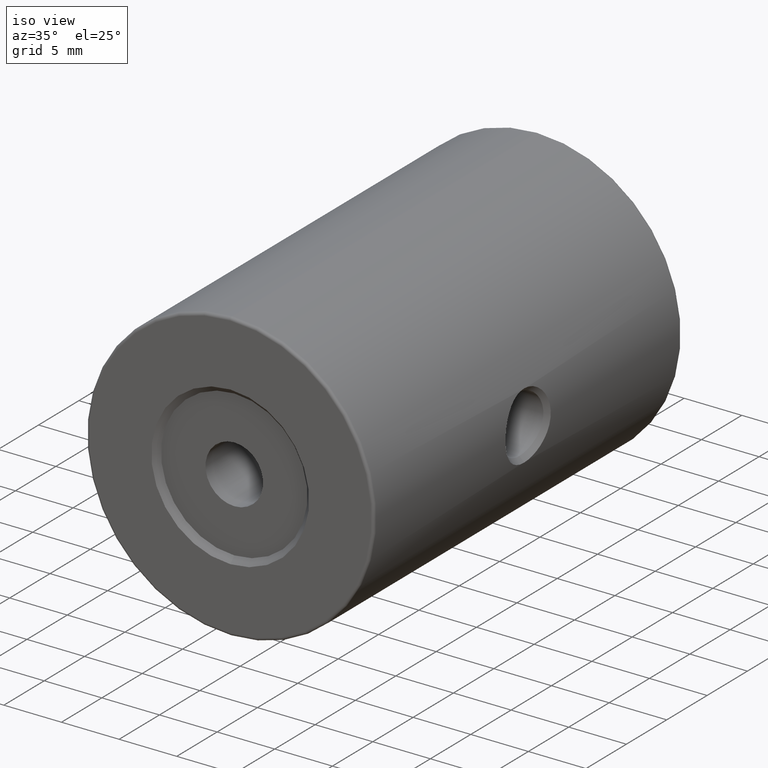
[diagram: clean part render]
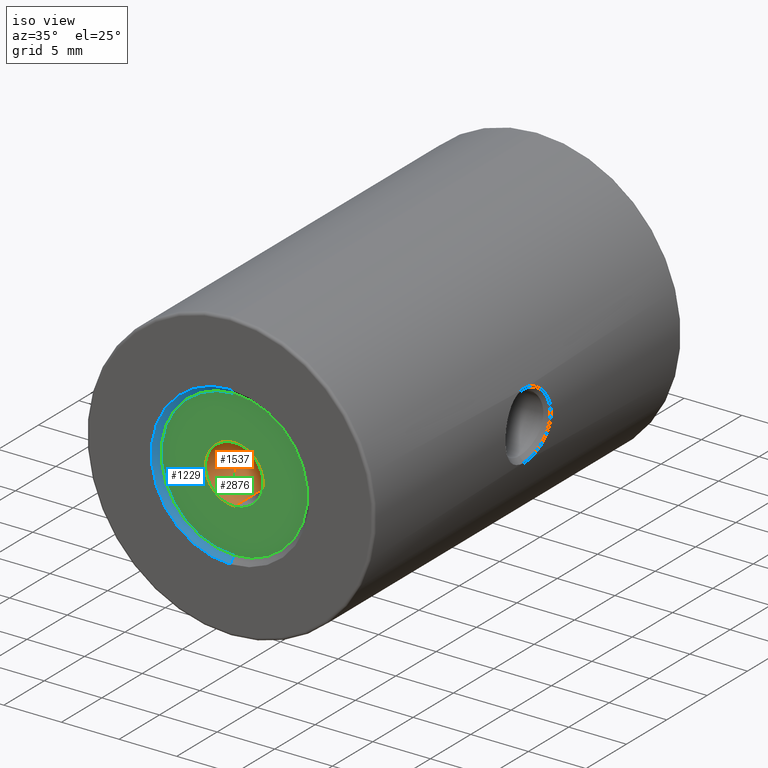
[diagram: same view with three faces highlighted in distinct colors, each labeled with its STEP entity id]
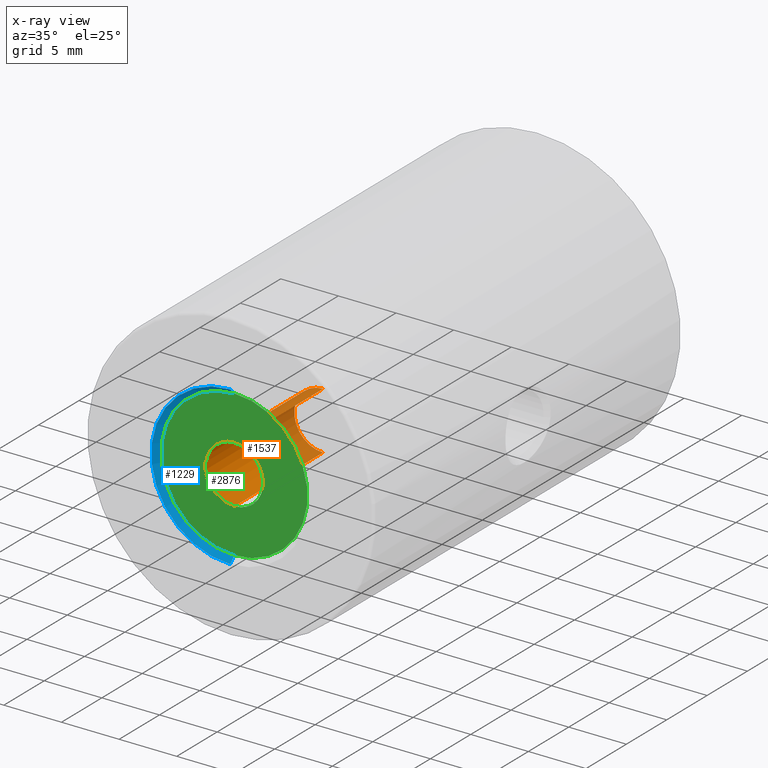
[diagram: x-ray of the same camera — body ghosted, the three highlighted faces saturated]
A machine part, iso view with three faces highlighted in distinct colors.
The next image is the same camera in x-ray (body ghosted, the three faces saturated) — at least one of them is partly hidden behind the body in this view.
Their STEP definitions:

[orange] entity #1537 — the highlighted cylindrical surface (edge-blend (fillet) strip) has radius 2.5 mm, axis along (-0, -1, -0).
#53 = EDGE_CURVE ( 'NONE', #3397, #2751, #270, .T. ) ;
#71 = LINE ( 'NONE', #1417, #1625 ) ;
#107 = CYLINDRICAL_SURFACE ( 'NONE', #613, 2.499999999999995115 ) ;
#162 = ORIENTED_EDGE ( 'NONE', *, *, #1398, .F. ) ;
#270 = CIRCLE ( 'NONE', #712, 2.499999999999995115 ) ;
#348 = CARTESIAN_POINT ( 'NONE',  ( -22.50520183104453409, -6.151747815230613092, 47.50000000000000711 ) ) ;
#358 = DIRECTION ( 'NONE',  ( -0.0000000000000000000, -1.000000000000000000, -0.0000000000000000000 ) ) ;
#395 = ORIENTED_EDGE ( 'NONE', *, *, #2640, .T. ) ;
#613 = AXIS2_PLACEMENT_3D ( 'NONE', #2202, #358, #897 ) ;
#636 = DIRECTION ( 'NONE',  ( -0.0000000000000000000, -1.000000000000000000, -0.0000000000000000000 ) ) ;
#651 = VERTEX_POINT ( 'NONE', #1182 ) ;
#712 = AXIS2_PLACEMENT_3D ( 'NONE', #3328, #1995, #2773 ) ;
#897 = DIRECTION ( 'NONE',  ( 0.0000000000000000000, 0.0000000000000000000, -1.000000000000000000 ) ) ;
#1041 = LINE ( 'NONE', #3178, #2687 ) ;
#1075 = CARTESIAN_POINT ( 'NONE',  ( -22.50520183104453409, -17.15174781523061043, 47.50000000000000711 ) ) ;
#1182 = CARTESIAN_POINT ( 'NONE',  ( -22.50520183104453409, -6.151747815230613092, 52.50000000000000000 ) ) ;
#1251 = CARTESIAN_POINT ( 'NONE',  ( -22.50520183104453409, -6.151747815230613092, 50.00000000000000000 ) ) ;
#1393 = CIRCLE ( 'NONE', #2846, 2.499999999999995115 ) ;
#1398 = EDGE_CURVE ( 'NONE', #1878, #2751, #71, .T. ) ;
#1417 = CARTESIAN_POINT ( 'NONE',  ( -22.50520183104453409, -17.65174781523061043, 47.50000000000000711 ) ) ;
#1481 = CARTESIAN_POINT ( 'NONE',  ( -22.50520183104453409, -17.15174781523061043, 52.50000000000000000 ) ) ;
#1537 = ADVANCED_FACE ( 'NONE', ( #3291 ), #107, .F. ) ;
#1625 = VECTOR ( 'NONE', #636, 1000.000000000000000 ) ;
#1878 = VERTEX_POINT ( 'NONE', #348 ) ;
#1995 = DIRECTION ( 'NONE',  ( 0.0000000000000000000, -1.000000000000000000, 0.0000000000000000000 ) ) ;
#2202 = CARTESIAN_POINT ( 'NONE',  ( -22.50520183104453409, -17.65174781523061043, 50.00000000000000000 ) ) ;
#2288 = DIRECTION ( 'NONE',  ( -0.0000000000000000000, -1.000000000000000000, -0.0000000000000000000 ) ) ;
#2490 = ORIENTED_EDGE ( 'NONE', *, *, #3449, .F. ) ;
#2620 = DIRECTION ( 'NONE',  ( 0.0000000000000000000, 0.0000000000000000000, -1.000000000000000000 ) ) ;
#2640 = EDGE_CURVE ( 'NONE', #651, #3397, #1041, .T. ) ;
#2687 = VECTOR ( 'NONE', #3453, 1000.000000000000000 ) ;
#2751 = VERTEX_POINT ( 'NONE', #1075 ) ;
#2773 = DIRECTION ( 'NONE',  ( 0.0000000000000000000, 0.0000000000000000000, -1.000000000000000000 ) ) ;
#2846 = AXIS2_PLACEMENT_3D ( 'NONE', #1251, #2288, #2620 ) ;
#3069 = ORIENTED_EDGE ( 'NONE', *, *, #53, .T. ) ;
#3178 = CARTESIAN_POINT ( 'NONE',  ( -22.50520183104453409, -17.65174781523061043, 52.50000000000000000 ) ) ;
#3290 = EDGE_LOOP ( 'NONE', ( #2490, #395, #3069, #162 ) ) ;
#3291 = FACE_OUTER_BOUND ( 'NONE', #3290, .T. ) ;
#3328 = CARTESIAN_POINT ( 'NONE',  ( -22.50520183104453409, -17.15174781523061043, 50.00000000000000000 ) ) ;
#3397 = VERTEX_POINT ( 'NONE', #1481 ) ;
#3449 = EDGE_CURVE ( 'NONE', #651, #1878, #1393, .T. ) ;
#3453 = DIRECTION ( 'NONE',  ( -0.0000000000000000000, -1.000000000000000000, -0.0000000000000000000 ) ) ;

[blue] entity #1229 — the highlighted conical surface has half-angle 45 deg.
#27 = DIRECTION ( 'NONE',  ( 0.0000000000000000000, 0.0000000000000000000, 1.000000000000000000 ) ) ;
#77 = CARTESIAN_POINT ( 'NONE',  ( -22.50520183104453409, -17.15174781523061043, 56.35000000000000142 ) ) ;
#106 = VERTEX_POINT ( 'NONE', #2627 ) ;
#135 = CARTESIAN_POINT ( 'NONE',  ( -22.50520183104453409, -17.15174781523061043, 43.64999999999999858 ) ) ;
#183 = EDGE_CURVE ( 'NONE', #2242, #106, #3149, .T. ) ;
#220 = CIRCLE ( 'NONE', #279, 6.350000000000001421 ) ;
#279 = AXIS2_PLACEMENT_3D ( 'NONE', #311, #2107, #27 ) ;
#311 = CARTESIAN_POINT ( 'NONE',  ( -22.50520183104453409, -17.15174781523061043, 50.00000000000000000 ) ) ;
#582 = CARTESIAN_POINT ( 'NONE',  ( -22.50520183104453409, -17.65174781523061043, 50.00000000000000000 ) ) ;
#635 = AXIS2_PLACEMENT_3D ( 'NONE', #582, #2717, #3272 ) ;
#685 = DIRECTION ( 'NONE',  ( 0.0000000000000000000, 0.0000000000000000000, 1.000000000000000000 ) ) ;
#724 = AXIS2_PLACEMENT_3D ( 'NONE', #3403, #2602, #685 ) ;
#826 = VECTOR ( 'NONE', #1780, 1000.000000000000000 ) ;
#934 = VERTEX_POINT ( 'NONE', #1586 ) ;
#1188 = EDGE_CURVE ( 'NONE', #3193, #934, #2963, .T. ) ;
#1229 = ADVANCED_FACE ( 'NONE', ( #2981 ), #2538, .F. ) ;
#1361 = CARTESIAN_POINT ( 'NONE',  ( -22.50520183104453409, -17.65174781523061043, 43.14999999999999147 ) ) ;
#1586 = CARTESIAN_POINT ( 'NONE',  ( -22.50520183104453409, -17.65174781523061043, 43.14999999999999147 ) ) ;
#1692 = ORIENTED_EDGE ( 'NONE', *, *, #2926, .T. ) ;
#1780 = DIRECTION ( 'NONE',  ( 8.659560562354950115E-17, -0.7071067811865463515, 0.7071067811865487940 ) ) ;
#2043 = CARTESIAN_POINT ( 'NONE',  ( -22.50520183104453409, -17.65174781523061043, 56.85000000000000853 ) ) ;
#2079 = VECTOR ( 'NONE', #3236, 1000.000000000000000 ) ;
#2107 = DIRECTION ( 'NONE',  ( -0.0000000000000000000, 1.000000000000000000, -0.0000000000000000000 ) ) ;
#2242 = VERTEX_POINT ( 'NONE', #77 ) ;
#2278 = ORIENTED_EDGE ( 'NONE', *, *, #183, .T. ) ;
#2538 = CONICAL_SURFACE ( 'NONE', #635, 6.850000000000008527, 0.7853981633974500554 ) ;
#2602 = DIRECTION ( 'NONE',  ( 0.0000000000000000000, 1.000000000000000000, 0.0000000000000000000 ) ) ;
#2627 = CARTESIAN_POINT ( 'NONE',  ( -22.50520183104453409, -17.65174781523061043, 56.85000000000000853 ) ) ;
#2717 = DIRECTION ( 'NONE',  ( -0.0000000000000000000, -1.000000000000000000, -0.0000000000000000000 ) ) ;
#2768 = EDGE_LOOP ( 'NONE', ( #1692, #2278, #2844, #3138 ) ) ;
#2800 = CIRCLE ( 'NONE', #724, 6.850000000000008527 ) ;
#2844 = ORIENTED_EDGE ( 'NONE', *, *, #3404, .F. ) ;
#2926 = EDGE_CURVE ( 'NONE', #3193, #2242, #220, .T. ) ;
#2963 = LINE ( 'NONE', #1361, #2079 ) ;
#2981 = FACE_OUTER_BOUND ( 'NONE', #2768, .T. ) ;
#3138 = ORIENTED_EDGE ( 'NONE', *, *, #1188, .F. ) ;
#3149 = LINE ( 'NONE', #2043, #826 ) ;
#3193 = VERTEX_POINT ( 'NONE', #135 ) ;
#3236 = DIRECTION ( 'NONE',  ( 0.0000000000000000000, -0.7071067811865463515, -0.7071067811865487940 ) ) ;
#3272 = DIRECTION ( 'NONE',  ( 0.0000000000000000000, 0.0000000000000000000, -1.000000000000000000 ) ) ;
#3403 = CARTESIAN_POINT ( 'NONE',  ( -22.50520183104453409, -17.65174781523061043, 50.00000000000000000 ) ) ;
#3404 = EDGE_CURVE ( 'NONE', #934, #106, #2800, .T. ) ;

[green] entity #2876 — the highlighted planar face has unit normal (0, -1, 0).
#27 = DIRECTION ( 'NONE',  ( 0.0000000000000000000, 0.0000000000000000000, 1.000000000000000000 ) ) ;
#53 = EDGE_CURVE ( 'NONE', #3397, #2751, #270, .T. ) ;
#77 = CARTESIAN_POINT ( 'NONE',  ( -22.50520183104453409, -17.15174781523061043, 56.35000000000000142 ) ) ;
#135 = CARTESIAN_POINT ( 'NONE',  ( -22.50520183104453409, -17.15174781523061043, 43.64999999999999858 ) ) ;
#220 = CIRCLE ( 'NONE', #279, 6.350000000000001421 ) ;
#270 = CIRCLE ( 'NONE', #712, 2.499999999999995115 ) ;
#279 = AXIS2_PLACEMENT_3D ( 'NONE', #311, #2107, #27 ) ;
#285 = AXIS2_PLACEMENT_3D ( 'NONE', #2481, #1929, #2463 ) ;
#311 = CARTESIAN_POINT ( 'NONE',  ( -22.50520183104453409, -17.15174781523061043, 50.00000000000000000 ) ) ;
#590 = CARTESIAN_POINT ( 'NONE',  ( -22.50520183104453409, -17.15174781523061043, 50.00000000000000000 ) ) ;
#689 = ORIENTED_EDGE ( 'NONE', *, *, #1955, .F. ) ;
#712 = AXIS2_PLACEMENT_3D ( 'NONE', #3328, #1995, #2773 ) ;
#895 = ORIENTED_EDGE ( 'NONE', *, *, #3051, .F. ) ;
#1075 = CARTESIAN_POINT ( 'NONE',  ( -22.50520183104453409, -17.15174781523061043, 47.50000000000000711 ) ) ;
#1159 = EDGE_LOOP ( 'NONE', ( #2139, #689 ) ) ;
#1318 = DIRECTION ( 'NONE',  ( 0.0000000000000000000, 0.0000000000000000000, -1.000000000000000000 ) ) ;
#1481 = CARTESIAN_POINT ( 'NONE',  ( -22.50520183104453409, -17.15174781523061043, 52.50000000000000000 ) ) ;
#1608 = CIRCLE ( 'NONE', #1893, 2.499999999999995115 ) ;
#1629 = PLANE ( 'NONE',  #2740 ) ;
#1847 = CARTESIAN_POINT ( 'NONE',  ( -22.50520183104453409, -17.15174781523061043, 50.00000000000000000 ) ) ;
#1893 = AXIS2_PLACEMENT_3D ( 'NONE', #1847, #2655, #1318 ) ;
#1929 = DIRECTION ( 'NONE',  ( -0.0000000000000000000, 1.000000000000000000, -0.0000000000000000000 ) ) ;
#1955 = EDGE_CURVE ( 'NONE', #2242, #3193, #2409, .T. ) ;
#1995 = DIRECTION ( 'NONE',  ( 0.0000000000000000000, -1.000000000000000000, 0.0000000000000000000 ) ) ;
#2107 = DIRECTION ( 'NONE',  ( -0.0000000000000000000, 1.000000000000000000, -0.0000000000000000000 ) ) ;
#2139 = ORIENTED_EDGE ( 'NONE', *, *, #2926, .F. ) ;
#2236 = EDGE_LOOP ( 'NONE', ( #895, #3343 ) ) ;
#2242 = VERTEX_POINT ( 'NONE', #77 ) ;
#2393 = DIRECTION ( 'NONE',  ( 0.0000000000000000000, 0.0000000000000000000, 1.000000000000000000 ) ) ;
#2409 = CIRCLE ( 'NONE', #285, 6.350000000000001421 ) ;
#2463 = DIRECTION ( 'NONE',  ( 0.0000000000000000000, 0.0000000000000000000, 1.000000000000000000 ) ) ;
#2481 = CARTESIAN_POINT ( 'NONE',  ( -22.50520183104453409, -17.15174781523061043, 50.00000000000000000 ) ) ;
#2655 = DIRECTION ( 'NONE',  ( 0.0000000000000000000, -1.000000000000000000, 0.0000000000000000000 ) ) ;
#2690 = FACE_BOUND ( 'NONE', #2236, .T. ) ;
#2740 = AXIS2_PLACEMENT_3D ( 'NONE', #590, #2955, #2393 ) ;
#2751 = VERTEX_POINT ( 'NONE', #1075 ) ;
#2773 = DIRECTION ( 'NONE',  ( 0.0000000000000000000, 0.0000000000000000000, -1.000000000000000000 ) ) ;
#2876 = ADVANCED_FACE ( 'NONE', ( #2690, #3195 ), #1629, .T. ) ;
#2926 = EDGE_CURVE ( 'NONE', #3193, #2242, #220, .T. ) ;
#2955 = DIRECTION ( 'NONE',  ( 0.0000000000000000000, -1.000000000000000000, 0.0000000000000000000 ) ) ;
#3051 = EDGE_CURVE ( 'NONE', #2751, #3397, #1608, .T. ) ;
#3193 = VERTEX_POINT ( 'NONE', #135 ) ;
#3195 = FACE_OUTER_BOUND ( 'NONE', #1159, .T. ) ;
#3328 = CARTESIAN_POINT ( 'NONE',  ( -22.50520183104453409, -17.15174781523061043, 50.00000000000000000 ) ) ;
#3343 = ORIENTED_EDGE ( 'NONE', *, *, #53, .F. ) ;
#3397 = VERTEX_POINT ( 'NONE', #1481 ) ;